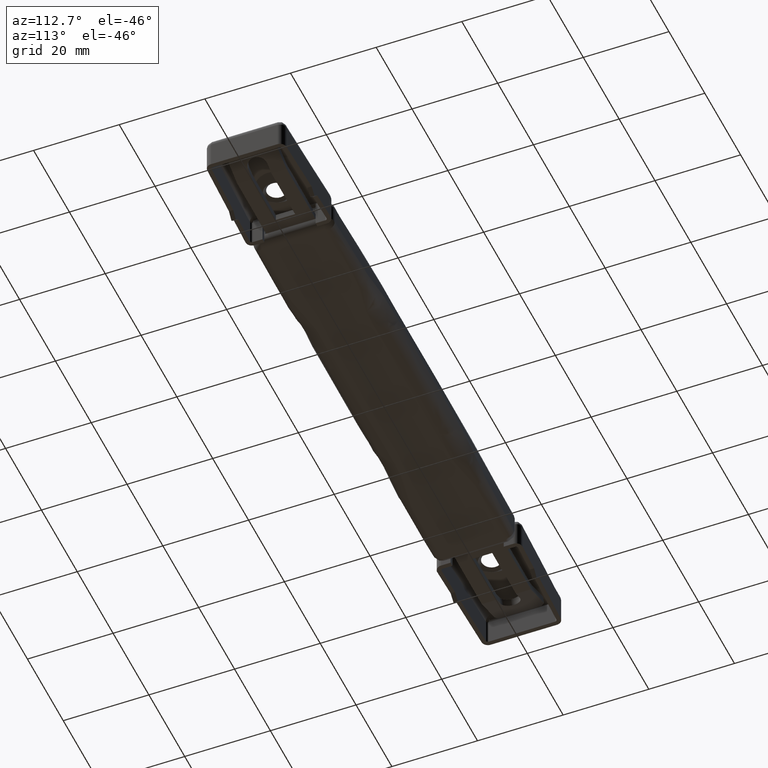
[diagram: clean part render]
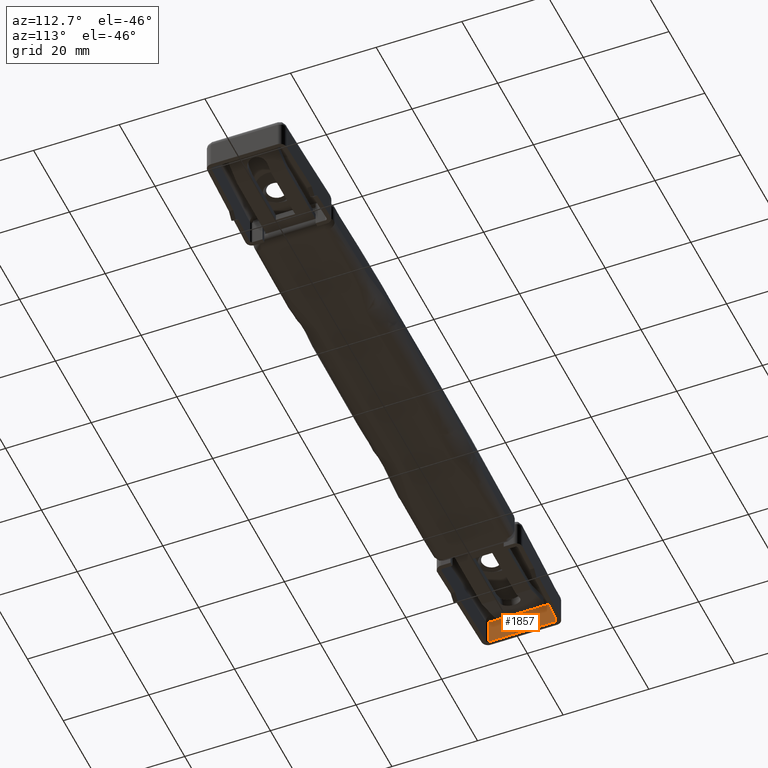
[diagram: same view with one face highlighted and labeled with its STEP entity id]
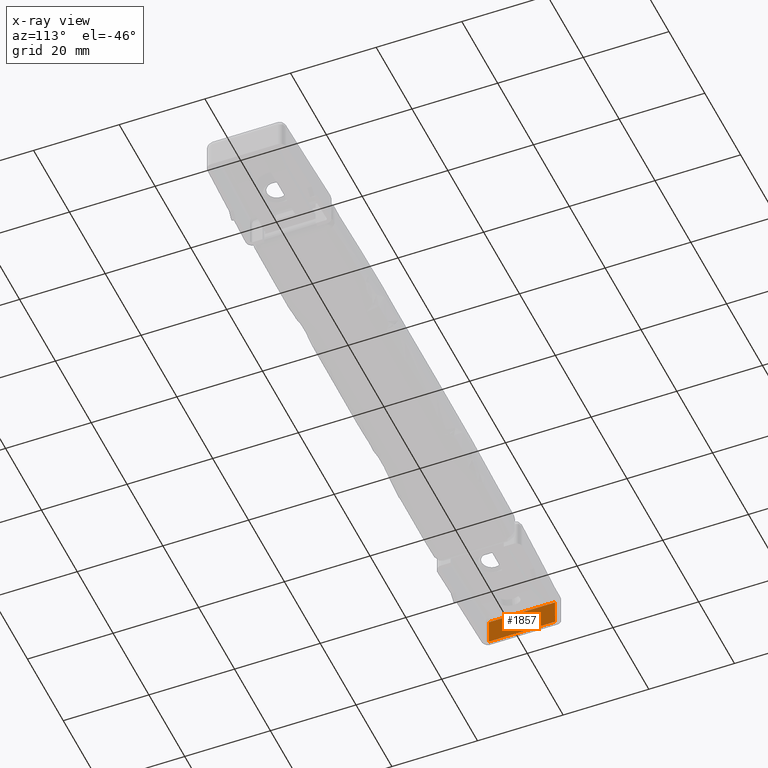
[diagram: x-ray of the same camera — body ghosted, the highlighted face saturated]
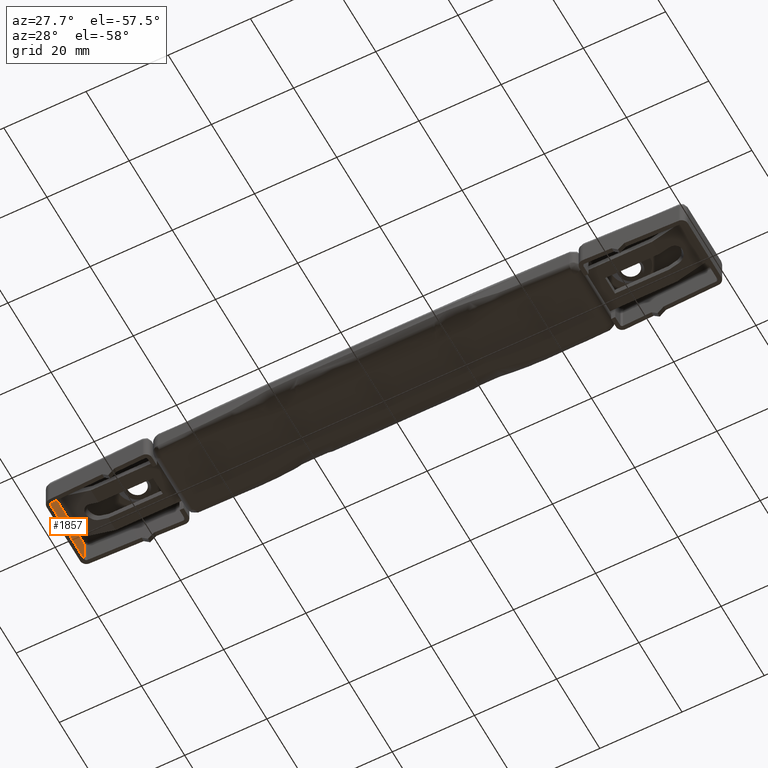
[diagram: same view with one face highlighted and labeled with its STEP entity id]
A machine part, auxiliary view. The second image highlights one B-rep face of the part: STEP entity #1857.
The next image is the same camera in x-ray: the body ghosted, the highlighted face saturated — about 0% of this face is hidden behind the body in this view.
A second angle (auxiliary view) of the same face is appended — the face is thin or edge-on in the first view.
In plain terms, the highlighted face is a freeform B-spline surface patch.
Its self-contained STEP definition (entity closure, byte-faithful):
#1247=CARTESIAN_POINT('',(-77.0,7.744736274134200,6.0));
#1248=VERTEX_POINT('',#1247);
#1348=CARTESIAN_POINT('',(-77.0,-7.745736274134121,6.0));
#1349=VERTEX_POINT('',#1348);
#1641=CARTESIAN_POINT('',(-77.0,7.744736274134200,0.0));
#1642=VERTEX_POINT('',#1641);
#1643=CARTESIAN_POINT('',(-77.0,7.744736274134200,6.0));
#1644=CARTESIAN_POINT('',(-77.0,7.744736274134200,0.0));
#1645=QUASI_UNIFORM_CURVE('',1,(#1643,#1644),.UNSPECIFIED.,.F.,.U.);
#1646=EDGE_CURVE('',#1248,#1642,#1645,.T.);
#1693=CARTESIAN_POINT('',(-77.0,-7.745736274134121,0.0));
#1694=VERTEX_POINT('',#1693);
#1708=CARTESIAN_POINT('',(-77.0,-7.745736274134121,0.0));
#1709=CARTESIAN_POINT('',(-77.0,-7.745736274134121,6.0));
#1710=QUASI_UNIFORM_CURVE('',1,(#1708,#1709),.UNSPECIFIED.,.F.,.U.);
#1711=EDGE_CURVE('',#1694,#1349,#1710,.T.);
#1760=CARTESIAN_POINT('',(-77.0,-7.745736274134121,6.0));
#1761=CARTESIAN_POINT('',(-77.0,7.744736274134200,6.0));
#1762=QUASI_UNIFORM_CURVE('',1,(#1760,#1761),.UNSPECIFIED.,.F.,.U.);
#1763=EDGE_CURVE('',#1349,#1248,#1762,.T.);
#1842=CARTESIAN_POINT('',(-77.0,8.518485347896661,6.299699988370837));
#1843=CARTESIAN_POINT('',(-77.0,8.518485347896661,-0.299700149303376));
#1844=CARTESIAN_POINT('',(-77.0,-8.519485763383431,6.299699988370837));
#1845=CARTESIAN_POINT('',(-77.0,-8.519485763383431,-0.299700149303376));
#1846=B_SPLINE_SURFACE_WITH_KNOTS('',1,1,((#1842,#1844),(#1843,#1845)),.UNSPECIFIED.,.F.,.F.,.U.,(2,2),(2,2),(0.0,6.599400137674214),(0.0,17.037971111280090),.UNSPECIFIED.);
#1847=CARTESIAN_POINT('',(-77.0,-7.745736274134121,0.0));
#1848=CARTESIAN_POINT('',(-77.0,7.744736274134200,0.0));
#1849=QUASI_UNIFORM_CURVE('',1,(#1847,#1848),.UNSPECIFIED.,.F.,.U.);
#1850=EDGE_CURVE('',#1694,#1642,#1849,.T.);
#1851=ORIENTED_EDGE('',*,*,#1850,.T.);
#1852=ORIENTED_EDGE('',*,*,#1646,.F.);
#1853=ORIENTED_EDGE('',*,*,#1763,.F.);
#1854=ORIENTED_EDGE('',*,*,#1711,.F.);
#1855=EDGE_LOOP('',(#1851,#1852,#1853,#1854));
#1856=FACE_OUTER_BOUND('',#1855,.T.);
#1857=ADVANCED_FACE('',(#1856),#1846,.F.);